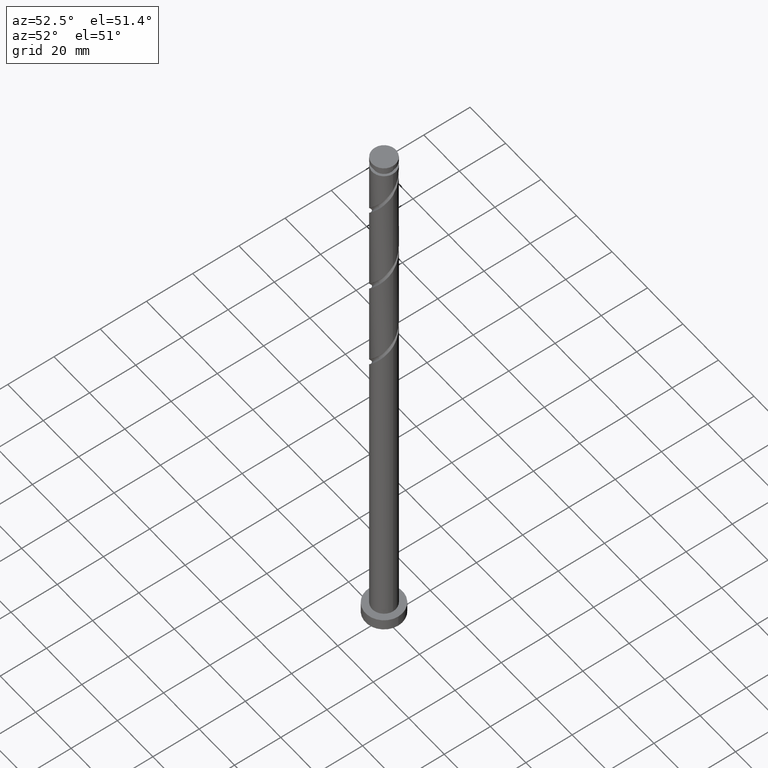
[diagram: clean part render]
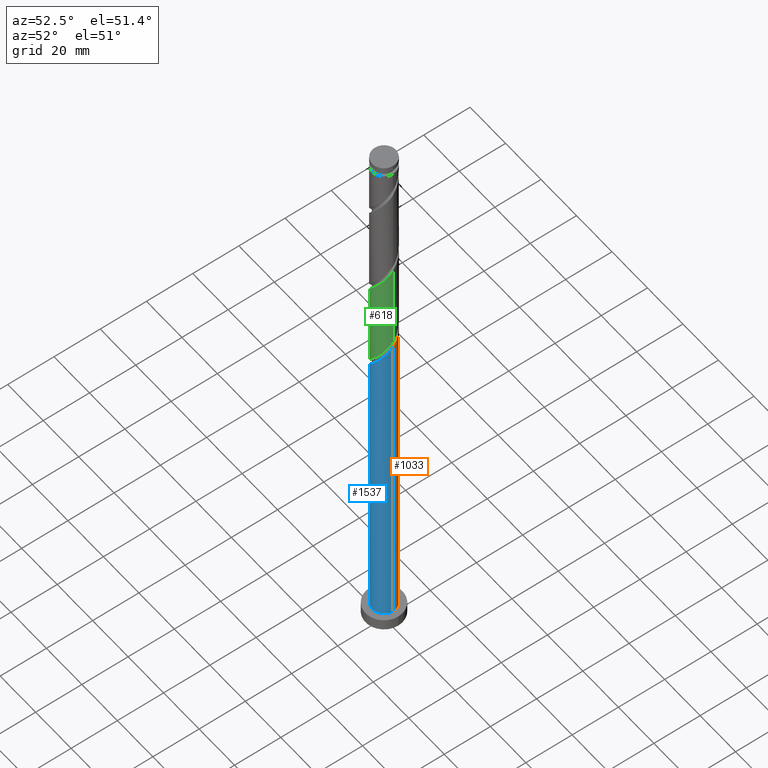
[diagram: same view with three faces highlighted in distinct colors, each labeled with its STEP entity id]
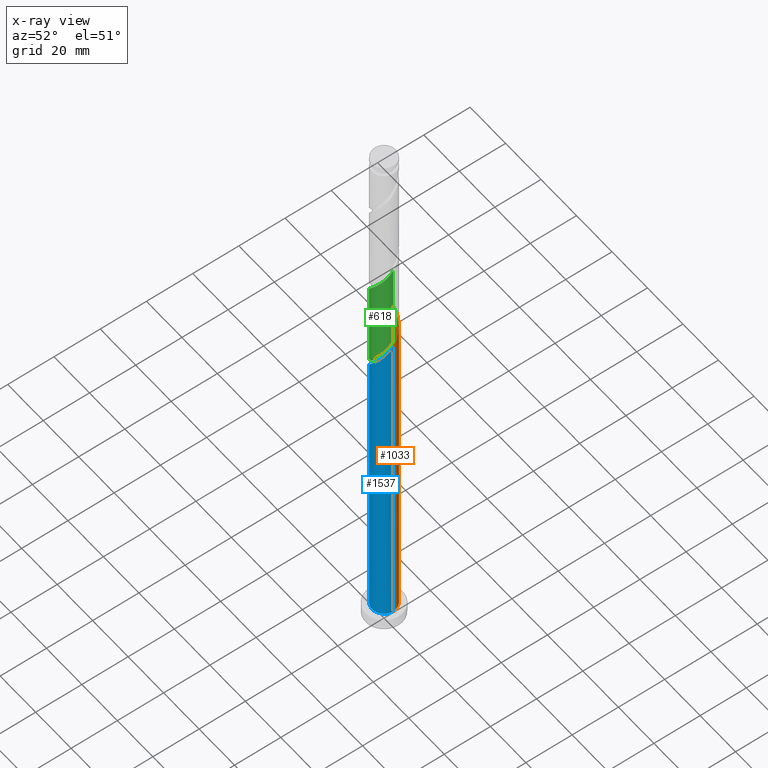
[diagram: x-ray of the same camera — body ghosted, the three highlighted faces saturated]
A machine part, auxiliary view with three faces highlighted in distinct colors.
The next image is the same camera in x-ray (body ghosted, the three faces saturated) — at least one of them is partly hidden behind the body in this view.
Their STEP definitions:

[orange] entity #1033 — the highlighted cylindrical surface (edge-blend (fillet) strip) has radius 5.1 mm, axis along (-0, -0, -1).
#11 = CARTESIAN_POINT ( 'NONE',  ( -3.090595955085188695, 4.103862792984370067, 126.2552858552499941 ) ) ;
#17 = CARTESIAN_POINT ( 'NONE',  ( 0.2107032813988189979, 5.095645604553743269, 160.7104140603782128 ) ) ;
#24 = CARTESIAN_POINT ( 'NONE',  ( -3.701410836239916069, 3.562728028154297455, 166.3193884193525491 ) ) ;
#33 = CARTESIAN_POINT ( 'NONE',  ( -4.689794993926371447, 2.003951824506580159, 168.7232345731987095 ) ) ;
#46 =( BOUNDED_CURVE ( )  B_SPLINE_CURVE ( 2, ( #1513, #1411, #278, #265, #116, #1403, #547, #129, #1262, #1825, #557, #1123, #1693, #728, #17, #594, #616, #324, #1174, #890, #1741, #24, #1581, #464, #33, #1036, #474, #1298, #1316 ),
 .UNSPECIFIED., .F., .T. ) 
 B_SPLINE_CURVE_WITH_KNOTS ( ( 3, 2, 2, 2, 2, 2, 2, 2, 2, 2, 2, 2, 2, 2, 3 ),
 ( 0.1795271625973835494, 0.1826923076923077094, 0.1923076923076922906, 0.2019230769230768718, 0.2115384615384615641, 0.2211538461538461453, 0.2307692307692307265, 0.2403846153846154188, 0.2500000000000000000, 0.2596153846153845812, 0.2692307692307692735, 0.2788461538461538547, 0.2884615384615384359, 0.2980769230769231282, 0.3045271625973833829 ),
 .UNSPECIFIED. ) 
 CURVE ( )  GEOMETRIC_REPRESENTATION_ITEM ( )  RATIONAL_B_SPLINE_CURVE ( ( 0.9061636035682829604, 0.9069090390690716097, 0.9090909090909279344, 0.9024626128164316974, 0.9090909090909279344, 0.9024626128164316974, 0.9090909090909279344, 0.9024626128164316974, 0.9090909090909279344, 0.9024626128164316974, 0.9090909090909279344, 0.9024626128164316974, 0.9090909090909279344, 0.9024626128164316974, 0.9090909090909279344, 0.9024626128164316974, 0.9090909090909279344, 0.9024626128164316974, 0.9090909090909279344, 0.9024626128164316974, 0.9090909090909279344, 0.9024626128164316974, 0.9090909090909279344, 0.9024626128164316974, 0.9090909090909279344, 0.9024626128164316974, 0.9090909090909279344, 0.9046444828382880221, 0.9061636035682827384 ) ) 
 REPRESENTATION_ITEM ( '' )  );
#56 = ORIENTED_EDGE ( 'NONE', *, *, #458, .T. ) ;
#58 = EDGE_CURVE ( 'NONE', #530, #144, #405, .T. ) ;
#90 =( BOUNDED_CURVE ( )  B_SPLINE_CURVE ( 2, ( #749, #622, #1178, #353, #909, #1625, #359, #919, #1213, #220, #781, #1748, #1042 ),
 .UNSPECIFIED., .F., .T. ) 
 B_SPLINE_CURVE_WITH_KNOTS ( ( 3, 2, 2, 2, 2, 2, 3 ),
 ( 0.000000000000000000, 0.009615384615384581224, 0.01923076923076927347, 0.02884615384615385469, 0.03846153846153843592, 0.04807692307692312123, 0.05452716259738344534 ),
 .UNSPECIFIED. ) 
 CURVE ( )  GEOMETRIC_REPRESENTATION_ITEM ( )  RATIONAL_B_SPLINE_CURVE ( ( 0.9090909090909279344, 0.9024626128164316974, 0.9090909090909279344, 0.9024626128164316974, 0.9090909090909279344, 0.9024626128164316974, 0.9090909090909279344, 0.9024626128164316974, 0.9090909090909279344, 0.9024626128164316974, 0.9090909090909279344, 0.9046444828382880221, 0.9061636035682829604 ) ) 
 REPRESENTATION_ITEM ( '' )  );
#105 = CARTESIAN_POINT ( 'NONE',  ( 0.000000000000000000, 0.000000000000000000, 120.6463114962757430 ) ) ;
#107 = CARTESIAN_POINT ( 'NONE',  ( 1.014887185848755369, 4.998000000000000220, 120.6463114962756435 ) ) ;
#111 = EDGE_CURVE ( 'NONE', #125, #1290, #823, .T. ) ;
#116 = CARTESIAN_POINT ( 'NONE',  ( 4.839227820526208923, 1.609929843516562320, 152.6975935475576875 ) ) ;
#120 = CARTESIAN_POINT ( 'NONE',  ( 0.000000000000000000, 0.000000000000000000, 250.0000000000000000 ) ) ;
#125 = VERTEX_POINT ( 'NONE', #922 ) ;
#129 = CARTESIAN_POINT ( 'NONE',  ( 3.982907504008072141, 3.244983974651748593, 155.1014397014037627 ) ) ;
#133 = CARTESIAN_POINT ( 'NONE',  ( 0.4080201137038957371, 5.121229614852613743, 121.4475935475576591 ) ) ;
#144 = VERTEX_POINT ( 'NONE', #356 ) ;
#145 = CARTESIAN_POINT ( 'NONE',  ( -3.982907504008063704, 3.244983974651746816, 127.8578499578140963 ) ) ;
#156 = CARTESIAN_POINT ( 'NONE',  ( -2.018670203111971428, 4.724240022723048327, 124.6527217526858919 ) ) ;
#196 = VECTOR ( 'NONE', #1831, 1000.000000000000000 ) ;
#219 = EDGE_CURVE ( 'NONE', #144, #1290, #1501, .T. ) ;
#220 = CARTESIAN_POINT ( 'NONE',  ( -4.933118798739824840, 1.434507615438210371, 127.8578499578140963 ) ) ;
#265 = CARTESIAN_POINT ( 'NONE',  ( 5.034708694974688648, 1.022341204283935046, 151.8963114962756151 ) ) ;
#278 = CARTESIAN_POINT ( 'NONE',  ( 5.083890084957960021, 0.4050451876843518262, 151.0950294449936564 ) ) ;
#282 = CARTESIAN_POINT ( 'NONE',  ( -4.839227820526198265, 1.609929843516564985, 130.2616961116602852 ) ) ;
#318 = VECTOR ( 'NONE', #929, 1000.000000000000000 ) ;
#324 = CARTESIAN_POINT ( 'NONE',  ( -1.621754257993613724, 4.874770385147393803, 163.1142602142243447 ) ) ;
#353 = CARTESIAN_POINT ( 'NONE',  ( -2.741237939645619903, 4.345007219726788605, 123.0501576501217897 ) ) ;
#356 = CARTESIAN_POINT ( 'NONE',  ( 5.100000000000001421, 6.245698675651502811E-16, 5.000000000000000000 ) ) ;
#359 = CARTESIAN_POINT ( 'NONE',  ( -4.073941012676415951, 3.068062030864624035, 125.4540038039679786 ) ) ;
#363 = CARTESIAN_POINT ( 'NONE',  ( -5.100000000000001421, 0.000000000000000000, 250.0000000000000000 ) ) ;
#368 = VECTOR ( 'NONE', #970, 1000.000000000000000 ) ;
#404 = CYLINDRICAL_SURFACE ( 'NONE', #1029, 5.100000000000001421 ) ;
#405 = LINE ( 'NONE', #1128, #368 ) ;
#422 = CARTESIAN_POINT ( 'NONE',  ( -2.554633079098580062, 4.414051407853708753, 125.4540038039679501 ) ) ;
#442 = CARTESIAN_POINT ( 'NONE',  ( -5.099999999999998757, 4.217574666386874631E-15, 132.3909000388341894 ) ) ;
#458 = EDGE_CURVE ( 'NONE', #1155, #976, #1594, .T. ) ;
#460 = DIRECTION ( 'NONE',  ( 1.000000000000000000, 0.000000000000000000, 0.000000000000000000 ) ) ;
#464 = CARTESIAN_POINT ( 'NONE',  ( -4.446471189112914502, 2.573396033574949726, 167.9219525219166655 ) ) ;
#474 = CARTESIAN_POINT ( 'NONE',  ( -5.033095136840526784, 0.8233792221767199937, 170.3257986757627691 ) ) ;
#476 = ORIENTED_EDGE ( 'NONE', *, *, #1463, .F. ) ;
#530 = VERTEX_POINT ( 'NONE', #940 ) ;
#532 = CARTESIAN_POINT ( 'NONE',  ( -5.100000000000001421, 0.000000000000000000, 250.0000000000000000 ) ) ;
#547 = CARTESIAN_POINT ( 'NONE',  ( 4.313327225042897339, 2.721251228700473757, 154.3001576501218040 ) ) ;
#557 = CARTESIAN_POINT ( 'NONE',  ( 2.554633079098586723, 4.414051407853714970, 157.5052858552500368 ) ) ;
#573 = ORIENTED_EDGE ( 'NONE', *, *, #931, .F. ) ;
#587 = CARTESIAN_POINT ( 'NONE',  ( -1.424048439806746780, 4.897150808488950346, 123.8514397014038479 ) ) ;
#594 = CARTESIAN_POINT ( 'NONE',  ( -0.4080201137038926285, 5.121229614852623513, 161.5116961116602283 ) ) ;
#616 = CARTESIAN_POINT ( 'NONE',  ( -1.014887185848753592, 4.998000000000007326, 162.3129781629423860 ) ) ;
#622 = CARTESIAN_POINT ( 'NONE',  ( -1.621754257993613724, 4.874770385147393803, 121.4475935475576733 ) ) ;
#682 = AXIS2_PLACEMENT_3D ( 'NONE', #1167, #1736, #460 ) ;
#685 = ORIENTED_EDGE ( 'NONE', *, *, #58, .T. ) ;
#718 = CARTESIAN_POINT ( 'NONE',  ( -4.313327225042888458, 2.721251228700470648, 128.6591320090961403 ) ) ;
#728 = CARTESIAN_POINT ( 'NONE',  ( 0.8294266765015260168, 5.070061594254859472, 159.9091320090960835 ) ) ;
#733 = CARTESIAN_POINT ( 'NONE',  ( -5.100000000000001421, 0.000000000000000000, 5.000000000000000000 ) ) ;
#749 = CARTESIAN_POINT ( 'NONE',  ( -1.014887185848753370, 4.998000000000007326, 120.6463114962756435 ) ) ;
#764 = ORIENTED_EDGE ( 'NONE', *, *, #825, .F. ) ;
#781 = CARTESIAN_POINT ( 'NONE',  ( -5.033095136840526784, 0.8233792221767199937, 128.6591320090961688 ) ) ;
#791 = AXIS2_PLACEMENT_3D ( 'NONE', #105, #1081, #1386 ) ;
#814 = LINE ( 'NONE', #532, #318 ) ;
#823 = LINE ( 'NONE', #363, #196 ) ;
#825 = EDGE_CURVE ( 'NONE', #1155, #125, #90, .T. ) ;
#865 = CARTESIAN_POINT ( 'NONE',  ( -5.083890084957950251, 0.4050451876843553234, 131.8642602142243732 ) ) ;
#875 = CARTESIAN_POINT ( 'NONE',  ( 1.014887185848755369, 4.998000000000000220, 120.6463114962756435 ) ) ;
#890 = CARTESIAN_POINT ( 'NONE',  ( -2.741237939645619903, 4.345007219726788605, 164.7168243167884327 ) ) ;
#909 = CARTESIAN_POINT ( 'NONE',  ( -3.221324387942768652, 3.953867623940543918, 123.8514397014038622 ) ) ;
#917 = ORIENTED_EDGE ( 'NONE', *, *, #111, .F. ) ;
#919 = CARTESIAN_POINT ( 'NONE',  ( -4.446471189112914502, 2.573396033574949726, 126.2552858552499799 ) ) ;
#922 = CARTESIAN_POINT ( 'NONE',  ( -5.100000000000009415, -2.123743271726710297E-15, 129.7350562870504405 ) ) ;
#929 = DIRECTION ( 'NONE',  ( -0.000000000000000000, -0.000000000000000000, -1.000000000000000000 ) ) ;
#931 = EDGE_CURVE ( 'NONE', #1585, #1136, #814, .T. ) ;
#940 = CARTESIAN_POINT ( 'NONE',  ( 5.100000000000009415, 1.435770099195522449E-15, 150.5683896203837833 ) ) ;
#970 = DIRECTION ( 'NONE',  ( -0.000000000000000000, -0.000000000000000000, -1.000000000000000000 ) ) ;
#976 = VERTEX_POINT ( 'NONE', #107 ) ;
#1019 = CARTESIAN_POINT ( 'NONE',  ( -4.643746946077711435, 2.197518482749192703, 129.4604140603782128 ) ) ;
#1029 = AXIS2_PLACEMENT_3D ( 'NONE', #120, #1818, #1232 ) ;
#1033 = ADVANCED_FACE ( 'NONE', ( #1499 ), #404, .T. ) ;
#1036 = CARTESIAN_POINT ( 'NONE',  ( -4.933118798739824840, 1.434507615438210371, 169.5245166244807251 ) ) ;
#1042 = CARTESIAN_POINT ( 'NONE',  ( -5.100000000000008527, -2.123743271726709903E-15, 129.7350562870504405 ) ) ;
#1081 = DIRECTION ( 'NONE',  ( -3.021066579430958153E-30, -2.040851148208008866E-14, -1.000000000000000000 ) ) ;
#1123 = CARTESIAN_POINT ( 'NONE',  ( 2.018670203111976313, 4.724240022723055432, 158.3065679065320523 ) ) ;
#1128 = CARTESIAN_POINT ( 'NONE',  ( 5.100000000000001421, 6.245698675651502811E-16, 250.0000000000000000 ) ) ;
#1136 = VERTEX_POINT ( 'NONE', #1378 ) ;
#1155 = VERTEX_POINT ( 'NONE', #1634 ) ;
#1167 = CARTESIAN_POINT ( 'NONE',  ( 0.000000000000000000, 0.000000000000000000, 5.000000000000000000 ) ) ;
#1174 = CARTESIAN_POINT ( 'NONE',  ( -2.181496098819617480, 4.609888802437091648, 163.9155422655064740 ) ) ;
#1178 = CARTESIAN_POINT ( 'NONE',  ( -2.181496098819617480, 4.609888802437091648, 122.2488755988397600 ) ) ;
#1213 = CARTESIAN_POINT ( 'NONE',  ( -4.689794993926371447, 2.003951824506580159, 127.0565679065320808 ) ) ;
#1232 = DIRECTION ( 'NONE',  ( -1.000000000000000000, 0.000000000000000000, 0.000000000000000000 ) ) ;
#1262 = CARTESIAN_POINT ( 'NONE',  ( 3.536751729546635303, 3.674423383818063105, 155.9027217526858919 ) ) ;
#1275 = CARTESIAN_POINT ( 'NONE',  ( -0.2107032813988129749, 5.095645604553732610, 122.2488755988397457 ) ) ;
#1286 = ORIENTED_EDGE ( 'NONE', *, *, #219, .T. ) ;
#1290 = VERTEX_POINT ( 'NONE', #733 ) ;
#1298 = CARTESIAN_POINT ( 'NONE',  ( -5.100000000000010303, 0.4144078365389290419, 170.8620222163687572 ) ) ;
#1316 = CARTESIAN_POINT ( 'NONE',  ( -5.100000000000009415, -2.123743271726710297E-15, 171.4017229537170977 ) ) ;
#1378 = CARTESIAN_POINT ( 'NONE',  ( -5.099999999999998757, 4.217574666386874631E-15, 132.3909000388341894 ) ) ;
#1386 = DIRECTION ( 'NONE',  ( 0.000000000000000000, 1.000000000000000000, -2.176907891421875093E-14 ) ) ;
#1403 = CARTESIAN_POINT ( 'NONE',  ( 4.643746946077720317, 2.197518482749192703, 153.4988755988397031 ) ) ;
#1407 = CARTESIAN_POINT ( 'NONE',  ( -0.8294266765015214649, 5.070061594254849702, 123.0501576501217897 ) ) ;
#1411 = CARTESIAN_POINT ( 'NONE',  ( 5.100000000000008527, 0.2028429647175319095, 150.8325605360167572 ) ) ;
#1443 = ORIENTED_EDGE ( 'NONE', *, *, #1814, .F. ) ;
#1463 = EDGE_CURVE ( 'NONE', #1136, #976, #1801, .T. ) ;
#1499 = FACE_OUTER_BOUND ( 'NONE', #1722, .T. ) ;
#1501 = CIRCLE ( 'NONE', #682, 5.100000000000001421 ) ;
#1513 = CARTESIAN_POINT ( 'NONE',  ( 5.100000000000008527, 1.435770099195522449E-15, 150.5683896203837833 ) ) ;
#1581 = CARTESIAN_POINT ( 'NONE',  ( -4.073941012676415951, 3.068062030864624035, 167.1206704706346500 ) ) ;
#1585 = VERTEX_POINT ( 'NONE', #1629 ) ;
#1594 = CIRCLE ( 'NONE', #791, 5.100000000000001421 ) ;
#1625 = CARTESIAN_POINT ( 'NONE',  ( -3.701410836239916069, 3.562728028154297455, 124.6527217526858777 ) ) ;
#1629 = CARTESIAN_POINT ( 'NONE',  ( -5.100000000000009415, -2.123743271726710297E-15, 171.4017229537170977 ) ) ;
#1634 = CARTESIAN_POINT ( 'NONE',  ( -1.014887185848753370, 4.998000000000007326, 120.6463114962756435 ) ) ;
#1685 = CARTESIAN_POINT ( 'NONE',  ( -5.100000000000000533, 0.2028429647175134520, 132.1267291232012155 ) ) ;
#1693 = CARTESIAN_POINT ( 'NONE',  ( 1.424048439806753663, 4.897150808488956564, 159.1078499578141248 ) ) ;
#1722 = EDGE_LOOP ( 'NONE', ( #1443, #685, #1286, #917, #764, #56, #476, #573 ) ) ;
#1724 = CARTESIAN_POINT ( 'NONE',  ( -5.034708694974681542, 1.022341204283935268, 131.0629781629423007 ) ) ;
#1736 = DIRECTION ( 'NONE',  ( 0.000000000000000000, 0.000000000000000000, 1.000000000000000000 ) ) ;
#1741 = CARTESIAN_POINT ( 'NONE',  ( -3.221324387942768652, 3.953867623940543918, 165.5181063680705620 ) ) ;
#1748 = CARTESIAN_POINT ( 'NONE',  ( -5.100000000000010303, 0.4144078365389249896, 129.1953555497021284 ) ) ;
#1801 =( BOUNDED_CURVE ( )  B_SPLINE_CURVE ( 2, ( #442, #1685, #865, #1724, #282, #1019, #718, #145, #1830, #11, #422, #156, #587, #1407, #1275, #133, #875 ),
 .UNSPECIFIED., .F., .T. ) 
 B_SPLINE_CURVE_WITH_KNOTS ( ( 3, 2, 2, 2, 2, 2, 2, 2, 3 ),
 ( 0.9295271625973832164, 0.9326923076923077094, 0.9423076923076922906, 0.9519230769230768718, 0.9615384615384615641, 0.9711538461538461453, 0.9807692307692307265, 0.9903846153846154188, 1.000000000000000000 ),
 .UNSPECIFIED. ) 
 CURVE ( )  GEOMETRIC_REPRESENTATION_ITEM ( )  RATIONAL_B_SPLINE_CURVE ( ( 0.9061636035682766321, 0.9069090390690652814, 0.9090909090909219392, 0.9024626128164254801, 0.9090909090909219392, 0.9024626128164254801, 0.9090909090909219392, 0.9024626128164254801, 0.9090909090909219392, 0.9024626128164254801, 0.9090909090909219392, 0.9024626128164254801, 0.9090909090909219392, 0.9024626128164254801, 0.9090909090909219392, 0.9024626128164254801, 0.9090909090909219392 ) ) 
 REPRESENTATION_ITEM ( '' )  );
#1814 = EDGE_CURVE ( 'NONE', #530, #1585, #46, .T. ) ;
#1818 = DIRECTION ( 'NONE',  ( -0.000000000000000000, -0.000000000000000000, -1.000000000000000000 ) ) ;
#1825 = CARTESIAN_POINT ( 'NONE',  ( 3.090595955085197577, 4.103862792984373620, 156.7040038039679075 ) ) ;
#1830 = CARTESIAN_POINT ( 'NONE',  ( -3.536751729546626866, 3.674423383818059108, 127.0565679065320381 ) ) ;
#1831 = DIRECTION ( 'NONE',  ( -0.000000000000000000, -0.000000000000000000, -1.000000000000000000 ) ) ;

[blue] entity #1537 — the highlighted cylindrical surface (edge-blend (fillet) strip) has radius 5.1 mm, axis along (-0, -0, -1).
#58 = EDGE_CURVE ( 'NONE', #530, #144, #405, .T. ) ;
#108 = AXIS2_PLACEMENT_3D ( 'NONE', #1782, #534, #824 ) ;
#111 = EDGE_CURVE ( 'NONE', #125, #1290, #823, .T. ) ;
#125 = VERTEX_POINT ( 'NONE', #922 ) ;
#144 = VERTEX_POINT ( 'NONE', #356 ) ;
#168 = CARTESIAN_POINT ( 'NONE',  ( 0.000000000000000000, 0.000000000000000000, 250.0000000000000000 ) ) ;
#193 = ORIENTED_EDGE ( 'NONE', *, *, #111, .T. ) ;
#196 = VECTOR ( 'NONE', #1831, 1000.000000000000000 ) ;
#244 = CARTESIAN_POINT ( 'NONE',  ( -0.8294266765015253506, -5.070061594254859472, 139.0757986757627975 ) ) ;
#254 = CARTESIAN_POINT ( 'NONE',  ( 5.100000000000008527, 1.435770099195522449E-15, 150.5683896203837833 ) ) ;
#333 = AXIS2_PLACEMENT_3D ( 'NONE', #168, #741, #1302 ) ;
#356 = CARTESIAN_POINT ( 'NONE',  ( 5.100000000000001421, 6.245698675651502811E-16, 5.000000000000000000 ) ) ;
#363 = CARTESIAN_POINT ( 'NONE',  ( -5.100000000000001421, 0.000000000000000000, 250.0000000000000000 ) ) ;
#368 = VECTOR ( 'NONE', #970, 1000.000000000000000 ) ;
#381 = CARTESIAN_POINT ( 'NONE',  ( -5.100000000000008527, -0.2028429647175262474, 129.9992272026834144 ) ) ;
#405 = LINE ( 'NONE', #1128, #368 ) ;
#443 = ORIENTED_EDGE ( 'NONE', *, *, #510, .T. ) ;
#510 = EDGE_CURVE ( 'NONE', #1290, #144, #1187, .T. ) ;
#512 = CARTESIAN_POINT ( 'NONE',  ( 3.221324387942768652, -3.953867623940544807, 144.6847730347371908 ) ) ;
#521 = CARTESIAN_POINT ( 'NONE',  ( 2.741237939645619015, -4.345007219726788605, 143.8834909834550899 ) ) ;
#522 = EDGE_CURVE ( 'NONE', #125, #530, #1106, .T. ) ;
#530 = VERTEX_POINT ( 'NONE', #940 ) ;
#534 = DIRECTION ( 'NONE',  ( 0.000000000000000000, 0.000000000000000000, 1.000000000000000000 ) ) ;
#544 = CARTESIAN_POINT ( 'NONE',  ( 1.014887185848754259, -4.998000000000007326, 141.4796448296089864 ) ) ;
#588 = EDGE_LOOP ( 'NONE', ( #1271, #1472, #193, #443 ) ) ;
#670 = CARTESIAN_POINT ( 'NONE',  ( 0.4080201137038932391, -5.121229614852623513, 140.6783627783269139 ) ) ;
#677 = CARTESIAN_POINT ( 'NONE',  ( -5.034708694974688648, -1.022341204283935712, 131.0629781629423007 ) ) ;
#699 = CARTESIAN_POINT ( 'NONE',  ( 2.181496098819615703, -4.609888802437091648, 143.0822089321731312 ) ) ;
#733 = CARTESIAN_POINT ( 'NONE',  ( -5.100000000000001421, 0.000000000000000000, 5.000000000000000000 ) ) ;
#741 = DIRECTION ( 'NONE',  ( -0.000000000000000000, -0.000000000000000000, -1.000000000000000000 ) ) ;
#798 = CARTESIAN_POINT ( 'NONE',  ( 4.933118798739824840, -1.434507615438213257, 148.6911832911474676 ) ) ;
#806 = CARTESIAN_POINT ( 'NONE',  ( -3.536751729546634415, -3.674423383818063993, 135.0693884193525776 ) ) ;
#823 = LINE ( 'NONE', #363, #196 ) ;
#824 = DIRECTION ( 'NONE',  ( 1.000000000000000000, 0.000000000000000000, 0.000000000000000000 ) ) ;
#922 = CARTESIAN_POINT ( 'NONE',  ( -5.100000000000009415, -2.123743271726710297E-15, 129.7350562870504405 ) ) ;
#940 = CARTESIAN_POINT ( 'NONE',  ( 5.100000000000009415, 1.435770099195522449E-15, 150.5683896203837833 ) ) ;
#948 = CARTESIAN_POINT ( 'NONE',  ( -4.839227820526207147, -1.609929843516564985, 131.8642602142244016 ) ) ;
#970 = DIRECTION ( 'NONE',  ( -0.000000000000000000, -0.000000000000000000, -1.000000000000000000 ) ) ;
#980 = CARTESIAN_POINT ( 'NONE',  ( -2.018670203111975425, -4.724240022723055432, 137.4732345731986811 ) ) ;
#1083 = CARTESIAN_POINT ( 'NONE',  ( 3.701410836239915625, -3.562728028154298343, 145.4860550860192063 ) ) ;
#1088 = CARTESIAN_POINT ( 'NONE',  ( 5.033095136840526784, -0.8233792221767206598, 149.4924653424294831 ) ) ;
#1106 =( BOUNDED_CURVE ( )  B_SPLINE_CURVE ( 2, ( #1502, #381, #1400, #677, #948, #1244, #1511, #1370, #806, #1677, #1225, #980, #1252, #244, #1811, #670, #544, #1119, #699, #521, #512, #1083, #1668, #1259, #1361, #798, #1088, #1111, #254 ),
 .UNSPECIFIED., .F., .T. ) 
 B_SPLINE_CURVE_WITH_KNOTS ( ( 3, 2, 2, 2, 2, 2, 2, 2, 2, 2, 2, 2, 2, 2, 3 ),
 ( 0.05452716259738344534, 0.05769230769230770939, 0.06730769230769229061, 0.07692307692307687184, 0.08653846153846156408, 0.09615384615384614531, 0.1057692307692307265, 0.1153846153846154188, 0.1250000000000000000, 0.1346153846153845812, 0.1442307692307692735, 0.1538461538461538547, 0.1634615384615384359, 0.1730769230769231282, 0.1795271625973835494 ),
 .UNSPECIFIED. ) 
 CURVE ( )  GEOMETRIC_REPRESENTATION_ITEM ( )  RATIONAL_B_SPLINE_CURVE ( ( 0.9061636035682829604, 0.9069090390690714987, 0.9090909090909279344, 0.9024626128164316974, 0.9090909090909279344, 0.9024626128164316974, 0.9090909090909279344, 0.9024626128164316974, 0.9090909090909279344, 0.9024626128164316974, 0.9090909090909279344, 0.9024626128164316974, 0.9090909090909279344, 0.9024626128164316974, 0.9090909090909279344, 0.9024626128164316974, 0.9090909090909279344, 0.9024626128164316974, 0.9090909090909279344, 0.9024626128164316974, 0.9090909090909279344, 0.9024626128164316974, 0.9090909090909279344, 0.9024626128164316974, 0.9090909090909279344, 0.9024626128164316974, 0.9090909090909279344, 0.9046444828382880221, 0.9061636035682829604 ) ) 
 REPRESENTATION_ITEM ( '' )  );
#1111 = CARTESIAN_POINT ( 'NONE',  ( 5.100000000000010303, -0.4144078365389183283, 150.0286888830354428 ) ) ;
#1119 = CARTESIAN_POINT ( 'NONE',  ( 1.621754257993612836, -4.874770385147393803, 142.2809268808910304 ) ) ;
#1127 = FACE_OUTER_BOUND ( 'NONE', #588, .T. ) ;
#1128 = CARTESIAN_POINT ( 'NONE',  ( 5.100000000000001421, 6.245698675651502811E-16, 250.0000000000000000 ) ) ;
#1187 = CIRCLE ( 'NONE', #108, 5.100000000000001421 ) ;
#1225 = CARTESIAN_POINT ( 'NONE',  ( -2.554633079098586279, -4.414051407853715858, 136.6719525219166655 ) ) ;
#1244 = CARTESIAN_POINT ( 'NONE',  ( -4.643746946077720317, -2.197518482749194479, 132.6655422655063887 ) ) ;
#1252 = CARTESIAN_POINT ( 'NONE',  ( -1.424048439806750999, -4.897150808488956564, 138.2745166244807820 ) ) ;
#1259 = CARTESIAN_POINT ( 'NONE',  ( 4.446471189112913613, -2.573396033574950170, 147.0886191885832943 ) ) ;
#1271 = ORIENTED_EDGE ( 'NONE', *, *, #58, .F. ) ;
#1290 = VERTEX_POINT ( 'NONE', #733 ) ;
#1302 = DIRECTION ( 'NONE',  ( -1.000000000000000000, 0.000000000000000000, 0.000000000000000000 ) ) ;
#1361 = CARTESIAN_POINT ( 'NONE',  ( 4.689794993926371447, -2.003951824506580159, 147.8899012398654520 ) ) ;
#1370 = CARTESIAN_POINT ( 'NONE',  ( -3.982907504008070809, -3.244983974651750813, 134.2681063680705051 ) ) ;
#1400 = CARTESIAN_POINT ( 'NONE',  ( -5.083890084957959132, -0.4050451876843533805, 130.2616961116603136 ) ) ;
#1431 = CYLINDRICAL_SURFACE ( 'NONE', #333, 5.100000000000001421 ) ;
#1472 = ORIENTED_EDGE ( 'NONE', *, *, #522, .F. ) ;
#1502 = CARTESIAN_POINT ( 'NONE',  ( -5.100000000000008527, -2.123743271726709903E-15, 129.7350562870504405 ) ) ;
#1511 = CARTESIAN_POINT ( 'NONE',  ( -4.313327225042898228, -2.721251228700472868, 133.4668243167884896 ) ) ;
#1537 = ADVANCED_FACE ( 'NONE', ( #1127 ), #1431, .T. ) ;
#1668 = CARTESIAN_POINT ( 'NONE',  ( 4.073941012676415063, -3.068062030864625811, 146.2873371373013072 ) ) ;
#1677 = CARTESIAN_POINT ( 'NONE',  ( -3.090595955085196245, -4.103862792984375396, 135.8706704706345647 ) ) ;
#1782 = CARTESIAN_POINT ( 'NONE',  ( 0.000000000000000000, 0.000000000000000000, 5.000000000000000000 ) ) ;
#1811 = CARTESIAN_POINT ( 'NONE',  ( -0.2107032813988162778, -5.095645604553743269, 139.8770807270448699 ) ) ;
#1831 = DIRECTION ( 'NONE',  ( -0.000000000000000000, -0.000000000000000000, -1.000000000000000000 ) ) ;

[green] entity #618 — the highlighted cylindrical surface (edge-blend (fillet) strip) has radius 5.1 mm, axis along (-0, -0, -1).
#31 = CYLINDRICAL_SURFACE ( 'NONE', #840, 5.100000000000001421 ) ;
#36 = CARTESIAN_POINT ( 'NONE',  ( 3.090595955085186919, -4.103862792984370955, 147.0886191885833512 ) ) ;
#47 = CARTESIAN_POINT ( 'NONE',  ( -3.701410836239909852, -3.562728028154290794, 137.4732345731987095 ) ) ;
#53 = ORIENTED_EDGE ( 'NONE', *, *, #1746, .F. ) ;
#85 = CARTESIAN_POINT ( 'NONE',  ( -4.839227820526207147, -1.609929843516564985, 173.5309268808910588 ) ) ;
#114 = ORIENTED_EDGE ( 'NONE', *, *, #931, .T. ) ;
#166 =( BOUNDED_CURVE ( )  B_SPLINE_CURVE ( 2, ( #1489, #1228, #1650, #801, #200, #1312, #666, #366, #248, #36, #1496, #1353, #241, #1085, #1221, #1320, #1787, #1777, #1176, #1584, #375, #47, #794, #233, #926, #785, #607, #508, #1595 ),
 .UNSPECIFIED., .F., .T. ) 
 B_SPLINE_CURVE_WITH_KNOTS ( ( 3, 2, 2, 2, 2, 2, 2, 2, 2, 2, 2, 2, 2, 2, 3 ),
 ( 0.8045271625973832164, 0.8076923076923077094, 0.8173076923076922906, 0.8269230769230768718, 0.8365384615384615641, 0.8461538461538461453, 0.8557692307692307265, 0.8653846153846154188, 0.8750000000000000000, 0.8846153846153845812, 0.8942307692307692735, 0.9038461538461538547, 0.9134615384615384359, 0.9230769230769231282, 0.9295271625973832164 ),
 .UNSPECIFIED. ) 
 CURVE ( )  GEOMETRIC_REPRESENTATION_ITEM ( )  RATIONAL_B_SPLINE_CURVE ( ( 0.9061636035682766321, 0.9069090390690652814, 0.9090909090909219392, 0.9024626128164254801, 0.9090909090909219392, 0.9024626128164254801, 0.9090909090909219392, 0.9024626128164254801, 0.9090909090909219392, 0.9024626128164254801, 0.9090909090909219392, 0.9024626128164254801, 0.9090909090909219392, 0.9024626128164254801, 0.9090909090909219392, 0.9024626128164254801, 0.9090909090909219392, 0.9024626128164254801, 0.9090909090909219392, 0.9024626128164254801, 0.9090909090909219392, 0.9024626128164254801, 0.9090909090909219392, 0.9024626128164254801, 0.9090909090909219392, 0.9024626128164254801, 0.9090909090909219392, 0.9046444828382820269, 0.9061636035682766321 ) ) 
 REPRESENTATION_ITEM ( '' )  );
#192 = CARTESIAN_POINT ( 'NONE',  ( 5.100000000000010303, -0.4144078365389218255, 191.6953555497021000 ) ) ;
#200 = CARTESIAN_POINT ( 'NONE',  ( 4.839227820526198265, -1.609929843516566095, 151.0950294449935711 ) ) ;
#216 = VECTOR ( 'NONE', #1255, 1000.000000000000000 ) ;
#233 = CARTESIAN_POINT ( 'NONE',  ( -4.446471189112907396, -2.573396033574942621, 135.8706704706345931 ) ) ;
#241 = CARTESIAN_POINT ( 'NONE',  ( 1.424048439806746780, -4.897150808488948570, 144.6847730347371623 ) ) ;
#248 = CARTESIAN_POINT ( 'NONE',  ( 3.536751729546626866, -3.674423383818059108, 147.8899012398654236 ) ) ;
#287 = CARTESIAN_POINT ( 'NONE',  ( 5.100000000000001421, 6.245698675651502811E-16, 250.0000000000000000 ) ) ;
#318 = VECTOR ( 'NONE', #929, 1000.000000000000000 ) ;
#327 = CARTESIAN_POINT ( 'NONE',  ( 4.689794993926371447, -2.003951824506580159, 189.5565679065320523 ) ) ;
#328 = VERTEX_POINT ( 'NONE', #1764 ) ;
#336 = CARTESIAN_POINT ( 'NONE',  ( 4.446471189112913613, -2.573396033574950170, 188.7552858552499799 ) ) ;
#350 = VERTEX_POINT ( 'NONE', #770 ) ;
#366 = CARTESIAN_POINT ( 'NONE',  ( 3.982907504008061927, -3.244983974651748593, 148.6911832911474391 ) ) ;
#375 = CARTESIAN_POINT ( 'NONE',  ( -3.221324387942764211, -3.953867623940536369, 138.2745166244808104 ) ) ;
#383 = CARTESIAN_POINT ( 'NONE',  ( 2.181496098819615703, -4.609888802437091648, 184.7488755988397315 ) ) ;
#459 = CARTESIAN_POINT ( 'NONE',  ( -1.424048439806750999, -4.897150808488956564, 179.9411832911474676 ) ) ;
#467 = CARTESIAN_POINT ( 'NONE',  ( 1.621754257993612836, -4.874770385147393803, 183.9475935475576875 ) ) ;
#498 = CARTESIAN_POINT ( 'NONE',  ( -3.982907504008070809, -3.244983974651750813, 175.9347730347371623 ) ) ;
#508 = CARTESIAN_POINT ( 'NONE',  ( -5.099999999999998757, -0.4144078365389372021, 132.9306007761825299 ) ) ;
#516 = CARTESIAN_POINT ( 'NONE',  ( 1.014887185848754259, -4.998000000000007326, 183.1463114962757004 ) ) ;
#532 = CARTESIAN_POINT ( 'NONE',  ( -5.100000000000001421, 0.000000000000000000, 250.0000000000000000 ) ) ;
#607 = CARTESIAN_POINT ( 'NONE',  ( -5.033095136840517902, -0.8233792221767159969, 133.4668243167884896 ) ) ;
#617 = ORIENTED_EDGE ( 'NONE', *, *, #1588, .F. ) ;
#618 = ADVANCED_FACE ( 'NONE', ( #725 ), #31, .T. ) ;
#619 = CARTESIAN_POINT ( 'NONE',  ( -3.090595955085196245, -4.103862792984375396, 177.5373371373012503 ) ) ;
#626 = CARTESIAN_POINT ( 'NONE',  ( -3.536751729546634415, -3.674423383818063993, 176.7360550860192916 ) ) ;
#666 = CARTESIAN_POINT ( 'NONE',  ( 4.313327225042888458, -2.721251228700471536, 149.4924653424294547 ) ) ;
#706 = DIRECTION ( 'NONE',  ( -1.000000000000000000, 0.000000000000000000, 0.000000000000000000 ) ) ;
#719 = DIRECTION ( 'NONE',  ( -0.000000000000000000, -0.000000000000000000, -1.000000000000000000 ) ) ;
#725 = FACE_OUTER_BOUND ( 'NONE', #1564, .T. ) ;
#747 = CARTESIAN_POINT ( 'NONE',  ( -5.083890084957959132, -0.4050451876843533805, 171.9283627783269708 ) ) ;
#755 = CARTESIAN_POINT ( 'NONE',  ( -4.313327225042898228, -2.721251228700472868, 175.1334909834551752 ) ) ;
#770 = CARTESIAN_POINT ( 'NONE',  ( 5.100000000000009415, 1.435770099195522449E-15, 192.2350562870504120 ) ) ;
#785 = CARTESIAN_POINT ( 'NONE',  ( -4.933118798739816846, -1.434507615438206596, 134.2681063680705051 ) ) ;
#794 = CARTESIAN_POINT ( 'NONE',  ( -4.073941012676409734, -3.068062030864616929, 136.6719525219166655 ) ) ;
#801 = CARTESIAN_POINT ( 'NONE',  ( 5.034708694974681542, -1.022341204283936156, 151.8963114962755583 ) ) ;
#802 =( BOUNDED_CURVE ( )  B_SPLINE_CURVE ( 2, ( #1080, #1642, #747, #881, #85, #1184, #755, #498, #626, #619, #1768, #935, #459, #1166, #1364, #1744, #516, #467, #383, #942, #1507, #1735, #1032, #336, #327, #1070, #1448, #192, #1039 ),
 .UNSPECIFIED., .F., .T. ) 
 B_SPLINE_CURVE_WITH_KNOTS ( ( 3, 2, 2, 2, 2, 2, 2, 2, 2, 2, 2, 2, 2, 2, 3 ),
 ( 0.3045271625973833829, 0.3076923076923077094, 0.3173076923076922906, 0.3269230769230768718, 0.3365384615384615641, 0.3461538461538461453, 0.3557692307692307265, 0.3653846153846154188, 0.3750000000000000000, 0.3846153846153845812, 0.3942307692307692735, 0.4038461538461538547, 0.4134615384615384359, 0.4230769230769231282, 0.4295271625973834939 ),
 .UNSPECIFIED. ) 
 CURVE ( )  GEOMETRIC_REPRESENTATION_ITEM ( )  RATIONAL_B_SPLINE_CURVE ( ( 0.9061636035682827384, 0.9069090390690714987, 0.9090909090909279344, 0.9024626128164316974, 0.9090909090909279344, 0.9024626128164316974, 0.9090909090909279344, 0.9024626128164316974, 0.9090909090909279344, 0.9024626128164316974, 0.9090909090909279344, 0.9024626128164316974, 0.9090909090909279344, 0.9024626128164316974, 0.9090909090909279344, 0.9024626128164316974, 0.9090909090909279344, 0.9024626128164316974, 0.9090909090909279344, 0.9024626128164316974, 0.9090909090909279344, 0.9024626128164316974, 0.9090909090909279344, 0.9024626128164316974, 0.9090909090909279344, 0.9024626128164316974, 0.9090909090909279344, 0.9046444828382880221, 0.9061636035682829604 ) ) 
 REPRESENTATION_ITEM ( '' )  );
#814 = LINE ( 'NONE', #532, #318 ) ;
#840 = AXIS2_PLACEMENT_3D ( 'NONE', #1578, #719, #706 ) ;
#881 = CARTESIAN_POINT ( 'NONE',  ( -5.034708694974688648, -1.022341204283935712, 172.7296448296089011 ) ) ;
#907 = ORIENTED_EDGE ( 'NONE', *, *, #1621, .F. ) ;
#926 = CARTESIAN_POINT ( 'NONE',  ( -4.689794993926362565, -2.003951824506575274, 135.0693884193525776 ) ) ;
#929 = DIRECTION ( 'NONE',  ( -0.000000000000000000, -0.000000000000000000, -1.000000000000000000 ) ) ;
#931 = EDGE_CURVE ( 'NONE', #1585, #1136, #814, .T. ) ;
#935 = CARTESIAN_POINT ( 'NONE',  ( -2.018670203111975425, -4.724240022723055432, 179.1399012398653667 ) ) ;
#942 = CARTESIAN_POINT ( 'NONE',  ( 2.741237939645619015, -4.345007219726788605, 185.5501576501217187 ) ) ;
#1032 = CARTESIAN_POINT ( 'NONE',  ( 4.073941012676415063, -3.068062030864625811, 187.9540038039679928 ) ) ;
#1039 = CARTESIAN_POINT ( 'NONE',  ( 5.100000000000008527, 1.435770099195522449E-15, 192.2350562870504120 ) ) ;
#1070 = CARTESIAN_POINT ( 'NONE',  ( 4.933118798739824840, -1.434507615438213257, 190.3578499578140395 ) ) ;
#1080 = CARTESIAN_POINT ( 'NONE',  ( -5.100000000000009415, -2.123743271726710297E-15, 171.4017229537170977 ) ) ;
#1085 = CARTESIAN_POINT ( 'NONE',  ( 0.8294266765015200216, -5.070061594254849702, 143.8834909834551183 ) ) ;
#1136 = VERTEX_POINT ( 'NONE', #1378 ) ;
#1166 = CARTESIAN_POINT ( 'NONE',  ( -0.8294266765015253506, -5.070061594254859472, 180.7424653424293979 ) ) ;
#1176 = CARTESIAN_POINT ( 'NONE',  ( -2.181496098819616591, -4.609888802437081878, 139.8770807270448415 ) ) ;
#1184 = CARTESIAN_POINT ( 'NONE',  ( -4.643746946077720317, -2.197518482749194479, 174.3322089321730175 ) ) ;
#1221 = CARTESIAN_POINT ( 'NONE',  ( 0.2107032813988115039, -5.095645604553733499, 143.0822089321731028 ) ) ;
#1228 = CARTESIAN_POINT ( 'NONE',  ( 5.100000000000000533, -0.2028429647175158668, 152.9600624565345584 ) ) ;
#1255 = DIRECTION ( 'NONE',  ( -0.000000000000000000, -0.000000000000000000, -1.000000000000000000 ) ) ;
#1312 = CARTESIAN_POINT ( 'NONE',  ( 4.643746946077711435, -2.197518482749192703, 150.2937473937115271 ) ) ;
#1320 = CARTESIAN_POINT ( 'NONE',  ( -0.4080201137038967918, -5.121229614852613743, 142.2809268808910304 ) ) ;
#1353 = CARTESIAN_POINT ( 'NONE',  ( 2.018670203111970984, -4.724240022723048327, 145.4860550860191779 ) ) ;
#1364 = CARTESIAN_POINT ( 'NONE',  ( -0.2107032813988162778, -5.095645604553743269, 181.5437473937115556 ) ) ;
#1378 = CARTESIAN_POINT ( 'NONE',  ( -5.099999999999998757, 4.217574666386874631E-15, 132.3909000388341894 ) ) ;
#1448 = CARTESIAN_POINT ( 'NONE',  ( 5.033095136840526784, -0.8233792221767206598, 191.1591320090961688 ) ) ;
#1489 = CARTESIAN_POINT ( 'NONE',  ( 5.100000000000001421, -6.161846675714157688E-15, 153.2242333721675323 ) ) ;
#1496 = CARTESIAN_POINT ( 'NONE',  ( 2.554633079098580062, -4.414051407853709641, 146.2873371373012787 ) ) ;
#1507 = CARTESIAN_POINT ( 'NONE',  ( 3.221324387942768652, -3.953867623940544807, 186.3514397014039048 ) ) ;
#1564 = EDGE_LOOP ( 'NONE', ( #53, #907, #114, #617 ) ) ;
#1578 = CARTESIAN_POINT ( 'NONE',  ( 0.000000000000000000, 0.000000000000000000, 250.0000000000000000 ) ) ;
#1584 = CARTESIAN_POINT ( 'NONE',  ( -2.741237939645617683, -4.345007219726778835, 139.0757986757627407 ) ) ;
#1585 = VERTEX_POINT ( 'NONE', #1629 ) ;
#1588 = EDGE_CURVE ( 'NONE', #328, #1136, #166, .T. ) ;
#1595 = CARTESIAN_POINT ( 'NONE',  ( -5.099999999999998757, 4.217574666386874631E-15, 132.3909000388341894 ) ) ;
#1621 = EDGE_CURVE ( 'NONE', #1585, #350, #802, .T. ) ;
#1629 = CARTESIAN_POINT ( 'NONE',  ( -5.100000000000009415, -2.123743271726710297E-15, 171.4017229537170977 ) ) ;
#1642 = CARTESIAN_POINT ( 'NONE',  ( -5.100000000000008527, -0.2028429647175222228, 171.6658938693500431 ) ) ;
#1650 = CARTESIAN_POINT ( 'NONE',  ( 5.083890084957950251, -0.4050451876843581545, 152.6975935475577160 ) ) ;
#1662 = LINE ( 'NONE', #287, #216 ) ;
#1735 = CARTESIAN_POINT ( 'NONE',  ( 3.701410836239915625, -3.562728028154298343, 187.1527217526858351 ) ) ;
#1744 = CARTESIAN_POINT ( 'NONE',  ( 0.4080201137038932391, -5.121229614852623513, 182.3450294449935427 ) ) ;
#1746 = EDGE_CURVE ( 'NONE', #350, #328, #1662, .T. ) ;
#1764 = CARTESIAN_POINT ( 'NONE',  ( 5.100000000000001421, -6.161846675714157688E-15, 153.2242333721675323 ) ) ;
#1768 = CARTESIAN_POINT ( 'NONE',  ( -2.554633079098586279, -4.414051407853715858, 178.3386191885833512 ) ) ;
#1777 = CARTESIAN_POINT ( 'NONE',  ( -1.621754257993614612, -4.874770385147385809, 140.6783627783268855 ) ) ;
#1787 = CARTESIAN_POINT ( 'NONE',  ( -1.014887185848754703, -4.998000000000000220, 141.4796448296089864 ) ) ;